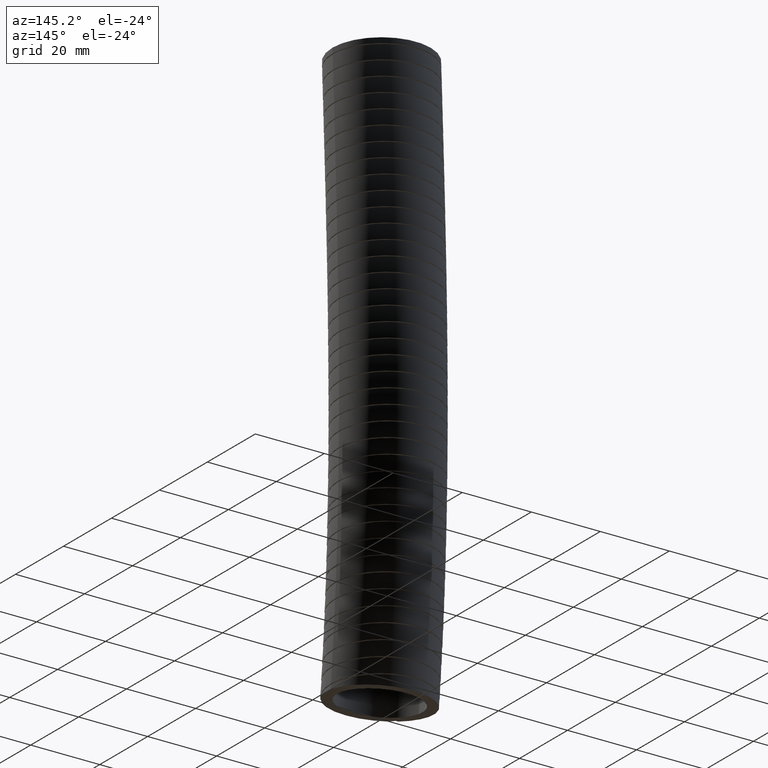
[diagram: clean part render]
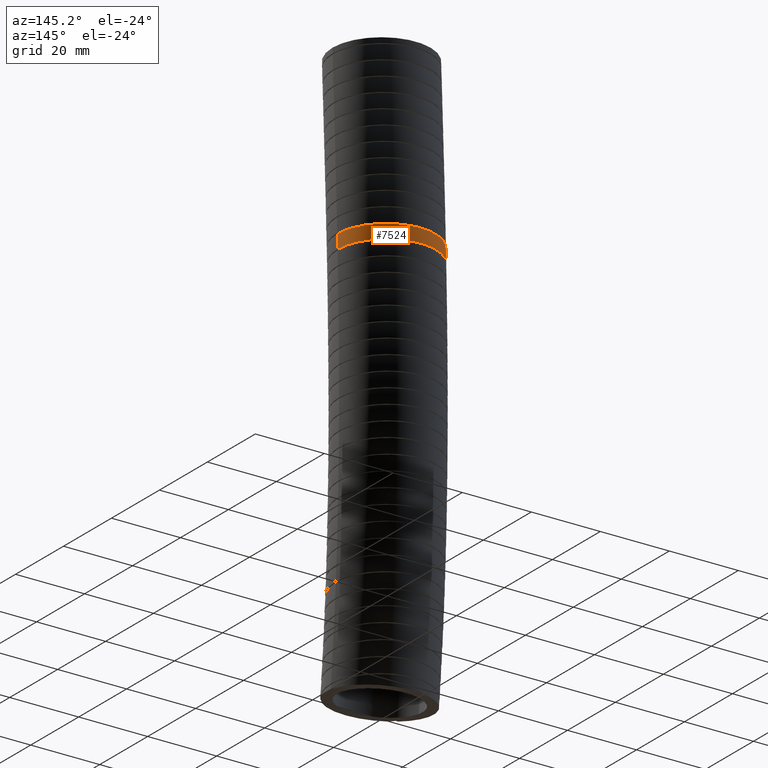
[diagram: same view with one face highlighted and labeled with its STEP entity id]
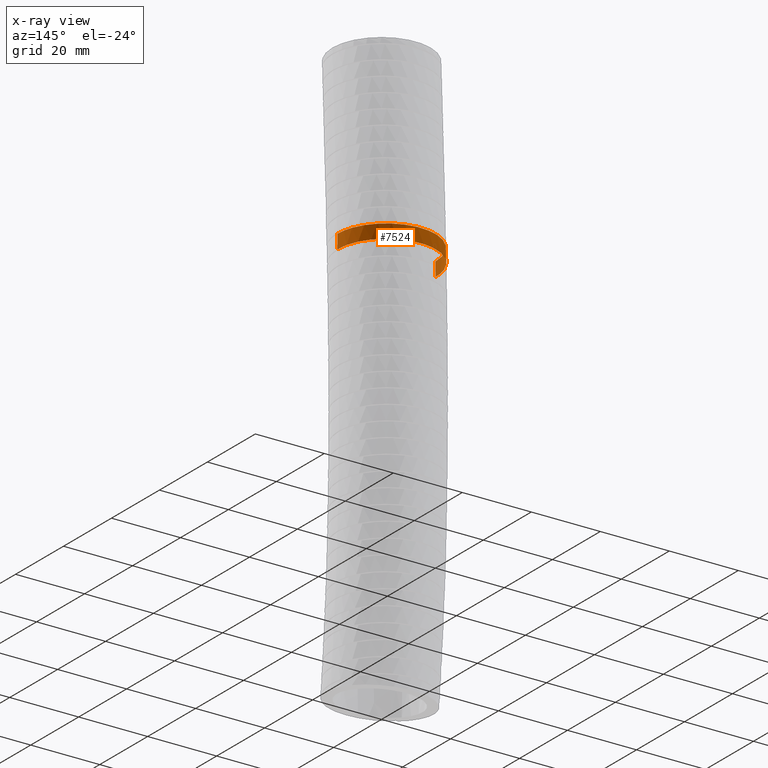
[diagram: x-ray of the same camera — body ghosted, the highlighted face saturated]
A machine part, auxiliary view. The second image highlights one B-rep face of the part: STEP entity #7524.
The next image is the same camera in x-ray: the body ghosted, the highlighted face saturated — about 0% of this face is hidden behind the body in this view.
In plain terms, the highlighted face is a freeform B-spline surface patch.
Its self-contained STEP definition (entity closure, byte-faithful):
#1480 = EDGE_CURVE ( 'NONE', #1533, #1511, #5701, .T. ) ;
#1499 = VERTEX_POINT ( 'NONE', #5762 ) ;
#1506 = EDGE_CURVE ( 'NONE', #1509, #1499, #5761, .T. ) ;
#1509 = VERTEX_POINT ( 'NONE', #5755 ) ;
#1511 = VERTEX_POINT ( 'NONE', #5772 ) ;
#1533 = VERTEX_POINT ( 'NONE', #6014 ) ;
#5514 = EDGE_LOOP ( 'NONE', ( #7455, #7088, #7252, #7278 ) ) ;
#5697 = CARTESIAN_POINT ( 'NONE',  ( 0.5600000000000000500, 0.08316556057875497400, -2.098393916621477100 ) ) ;
#5698 = CARTESIAN_POINT ( 'NONE',  ( 0.5600000000000000500, 0.08158978297478158800, -2.045089779108594500 ) ) ;
#5699 = CARTESIAN_POINT ( 'NONE',  ( 0.5600000000000000500, 0.07995251212337227400, -1.991783052369638900 ) ) ;
#5700 = CARTESIAN_POINT ( 'NONE',  ( 0.5600000000000000500, 0.07825843623321680800, -1.938473933805744600 ) ) ;
#5701 = B_SPLINE_CURVE_WITH_KNOTS ( 'NONE', 3,
 ( #5700, #5699, #5698, #5697 ),
 .UNSPECIFIED., .F., .F.,
 ( 4, 4 ),
 ( 0.2944911416102383700, 0.3187959609143171100 ),
 .UNSPECIFIED. ) ;
#5755 = CARTESIAN_POINT ( 'NONE',  ( -0.5600000000000000500, 0.07825843624542037900, -1.938473933997754100 ) ) ;
#5756 = CARTESIAN_POINT ( 'NONE',  ( -0.5600000000000000500, 0.08316556059010749000, -2.098393916813488400 ) ) ;
#5757 = CARTESIAN_POINT ( 'NONE',  ( -0.5600000000000000500, 0.08158978298061067600, -2.045089779300780700 ) ) ;
#5758 = CARTESIAN_POINT ( 'NONE',  ( -0.5600000000000000500, 0.07995251212934359500, -1.991783052561833400 ) ) ;
#5760 = CARTESIAN_POINT ( 'NONE',  ( -0.5600000000000000500, 0.07825843624542037900, -1.938473933997754100 ) ) ;
#5761 = B_SPLINE_CURVE_WITH_KNOTS ( 'NONE', 3,
 ( #5760, #5758, #5757, #5756 ),
 .UNSPECIFIED., .F., .F.,
 ( 4, 4 ),
 ( 0.2944911416394482300, 0.3187959609435260200 ),
 .UNSPECIFIED. ) ;
#5762 = CARTESIAN_POINT ( 'NONE',  ( -0.5600000000000000500, 0.08316556059010749000, -2.098393916813488400 ) ) ;
#5772 = CARTESIAN_POINT ( 'NONE',  ( 0.5600000000000000500, 0.08316556057875497400, -2.098393916621477100 ) ) ;
#6014 = CARTESIAN_POINT ( 'NONE',  ( 0.5600000000000000500, 0.07825843623321680800, -1.938473933805744600 ) ) ;
#7045 = EDGE_CURVE ( 'NONE', #1511, #1499, #9196, .T. ) ;
#7088 = ORIENTED_EDGE ( 'NONE', *, *, #7134, .T. ) ;
#7134 = EDGE_CURVE ( 'NONE', #1509, #1533, #9323, .T. ) ;
#7252 = ORIENTED_EDGE ( 'NONE', *, *, #1480, .T. ) ;
#7278 = ORIENTED_EDGE ( 'NONE', *, *, #7045, .T. ) ;
#7455 = ORIENTED_EDGE ( 'NONE', *, *, #1506, .F. ) ;
#7524 = ADVANCED_FACE ( 'NONE', ( #9682 ), #9747, .T. ) ;
#8953 = CARTESIAN_POINT ( 'NONE',  ( 0.4860428273903295600, 0.3636520271099656400, -2.098393916813487100 ) ) ;
#8954 = CARTESIAN_POINT ( 'NONE',  ( 0.5032494191954933700, 0.3314893175565425400, -2.098393916813487500 ) ) ;
#8955 = CARTESIAN_POINT ( 'NONE',  ( 0.4555540889890686800, 0.4093031350996708100, -2.098393916813487100 ) ) ;
#9196 = B_SPLINE_CURVE_WITH_KNOTS ( 'NONE', 3,
 ( #9204, #9203, #9202, #9201, #9200, #9199, #9198, #8954, #8953, #8955, #9275, #9274, #9273, #9272, #9271, #9270, #9269, #9268, #9267, #9266, #9265, #9264, #9263, #9262, #9261, #9260, #9259, #9258, #9257, #9256, #9255, #9254, #9253, #9252, #9251, #9250, #9249, #9248, #9247, #9246, #9245, #9244, #9243, #9242, #9241, #9240, #9239, #9238, #9237 ),
 .UNSPECIFIED., .F., .F.,
 ( 4, 2, 2, 2, 2, 2, 2, 2, 2, 1, 2, 2, 2, 2, 2, 2, 2, 2, 2, 2, 2, 2, 2, 2, 4 ),
 ( 0.0000000000000000000, 0.002779168033226851200, 0.004168752049840277300, 0.005558336066453702400, 0.008337504099680559700, 0.009727088116293990100, 0.01111667213290742200, 0.01389584016613428500, 0.01528542418274771700, 0.01667500819936114700, 0.01806459221597457900, 0.01945417623258801100, 0.02223334426581487900, 0.02362292828242831500, 0.02501251229904175400, 0.02779168033226862200, 0.02918126434888205700, 0.03057084836549549300, 0.03335001639872235700, 0.03612918443194921400, 0.03751876844856264600, 0.03890835246517607100, 0.04168752049840293600, 0.04307710451501636800, 0.04446668853162980000 ),
 .UNSPECIFIED. ) ;
#9198 = CARTESIAN_POINT ( 'NONE',  ( 0.5243381902195863900, 0.2806288736407632200, -2.098393916813487500 ) ) ;
#9199 = CARTESIAN_POINT ( 'NONE',  ( 0.5305973822502106900, 0.2631439259864081200, -2.098393916813487500 ) ) ;
#9200 = CARTESIAN_POINT ( 'NONE',  ( 0.5412613059292654700, 0.2279629140342686900, -2.098393916813487100 ) ) ;
#9201 = CARTESIAN_POINT ( 'NONE',  ( 0.5456959892537199800, 0.2102195925067627800, -2.098393916813487500 ) ) ;
#9202 = CARTESIAN_POINT ( 'NONE',  ( 0.5563682666131599700, 0.1565414105909474500, -2.098393916813487500 ) ) ;
#9203 = CARTESIAN_POINT ( 'NONE',  ( 0.5599999999999999400, 0.1201627459376046800, -2.098393916621476200 ) ) ;
#9204 = CARTESIAN_POINT ( 'NONE',  ( 0.5600000000000000500, 0.08316556057875497400, -2.098393916621477100 ) ) ;
#9237 = CARTESIAN_POINT ( 'NONE',  ( -0.5600000000000000500, 0.08316556059010749000, -2.098393916813488400 ) ) ;
#9238 = CARTESIAN_POINT ( 'NONE',  ( -0.5600000000000001600, 0.1014383123739788100, -2.098393916813487500 ) ) ;
#9239 = CARTESIAN_POINT ( 'NONE',  ( -0.5591076056225144900, 0.1197677464772930200, -2.098393916813486200 ) ) ;
#9240 = CARTESIAN_POINT ( 'NONE',  ( -0.5554773948007129000, 0.1565438305760626100, -2.098393916813487100 ) ) ;
#9241 = CARTESIAN_POINT ( 'NONE',  ( -0.5527581983685109200, 0.1747617239840763800, -2.098393916813487100 ) ) ;
#9242 = CARTESIAN_POINT ( 'NONE',  ( -0.5420218671322213400, 0.2285716714436270600, -2.098393916813487500 ) ) ;
#9243 = CARTESIAN_POINT ( 'NONE',  ( -0.5314353913961841200, 0.2634812989848098800, -2.098393916813487100 ) ) ;
#9244 = CARTESIAN_POINT ( 'NONE',  ( -0.5103489983114634100, 0.3143824450055388600, -2.098393916813487100 ) ) ;
#9245 = CARTESIAN_POINT ( 'NONE',  ( -0.5024017668482870800, 0.3311714017765854400, -2.098393916813488400 ) ) ;
#9246 = CARTESIAN_POINT ( 'NONE',  ( -0.4850647468625801700, 0.3635586112454433600, -2.098393916813487500 ) ) ;
#9247 = CARTESIAN_POINT ( 'NONE',  ( -0.4756525606037124200, 0.3792308927216242500, -2.098393916813487500 ) ) ;
#9248 = CARTESIAN_POINT ( 'NONE',  ( -0.4452312255712878600, 0.4247161907928717600, -2.098393916813488000 ) ) ;
#9249 = CARTESIAN_POINT ( 'NONE',  ( -0.4220104517854071900, 0.4530610638073747100, -2.098393916813487100 ) ) ;
#9250 = CARTESIAN_POINT ( 'NONE',  ( -0.3697183111031833200, 0.5053132231013789400, -2.098393916813487500 ) ) ;
#9251 = CARTESIAN_POINT ( 'NONE',  ( -0.3414324221948030200, 0.5284544289887418400, -2.098393916813488000 ) ) ;
#9252 = CARTESIAN_POINT ( 'NONE',  ( -0.2959151490182663200, 0.5588581141779291900, -2.098393916813487500 ) ) ;
#9253 = CARTESIAN_POINT ( 'NONE',  ( -0.2802241857463134700, 0.5682693561275299300, -2.098393916813487100 ) ) ;
#9254 = CARTESIAN_POINT ( 'NONE',  ( -0.2477797978737728300, 0.5856097924414911400, -2.098393916813487500 ) ) ;
#9255 = CARTESIAN_POINT ( 'NONE',  ( -0.2309956966601164100, 0.5935391279541648600, -2.098393916813487100 ) ) ;
#9256 = CARTESIAN_POINT ( 'NONE',  ( -0.1801467096674426400, 0.6145681410414474100, -2.098393916813487500 ) ) ;
#9257 = CARTESIAN_POINT ( 'NONE',  ( -0.1452393517733231200, 0.6251413534723818700, -2.098393916813488900 ) ) ;
#9258 = CARTESIAN_POINT ( 'NONE',  ( -0.09137498722017831100, 0.6358617957555270400, -2.098393916813488400 ) ) ;
#9259 = CARTESIAN_POINT ( 'NONE',  ( -0.07308552347788528600, 0.6385798163018597800, -2.098393916813487100 ) ) ;
#9260 = CARTESIAN_POINT ( 'NONE',  ( -0.03637224330681720200, 0.6421844240174333600, -2.098393916813487500 ) ) ;
#9261 = CARTESIAN_POINT ( 'NONE',  ( -0.01806410425600935400, 0.6430687751340287100, -2.098393916813488000 ) ) ;
#9262 = CARTESIAN_POINT ( 'NONE',  ( 0.03671911801096199700, 0.6430495095761483700, -2.098393916813488400 ) ) ;
#9263 = CARTESIAN_POINT ( 'NONE',  ( 0.07305435141928814900, 0.6394990315474198300, -2.098393916813488400 ) ) ;
#9264 = CARTESIAN_POINT ( 'NONE',  ( 0.1272691963632583400, 0.6287223971082409600, -2.098393916813488400 ) ) ;
#9265 = CARTESIAN_POINT ( 'NONE',  ( 0.1452370710183409900, 0.6242143493081429000, -2.098393916813487100 ) ) ;
#9266 = CARTESIAN_POINT ( 'NONE',  ( 0.1802940383480488300, 0.6135671158998845500, -2.098393916813487100 ) ) ;
#9267 = CARTESIAN_POINT ( 'NONE',  ( 0.2146659530266806800, 0.6012538445577361200, -2.098393916813487500 ) ) ;
#9268 = CARTESIAN_POINT ( 'NONE',  ( 0.2476862666604869000, 0.5856534994284773300, -2.098393916813487500 ) ) ;
#9269 = CARTESIAN_POINT ( 'NONE',  ( 0.2800204416738372200, 0.5683844753038229700, -2.098393916813487100 ) ) ;
#9270 = CARTESIAN_POINT ( 'NONE',  ( 0.2959291046648930800, 0.5588558209695287900, -2.098393916813487100 ) ) ;
#9271 = CARTESIAN_POINT ( 'NONE',  ( 0.3418501045845032700, 0.5281612741776866600, -2.098393916813487100 ) ) ;
#9272 = CARTESIAN_POINT ( 'NONE',  ( 0.3700492966020657600, 0.5049858455872178200, -2.098393916813487100 ) ) ;
#9273 = CARTESIAN_POINT ( 'NONE',  ( 0.4088105378356551300, 0.4662492054332814700, -2.098393916813486600 ) ) ;
#9274 = CARTESIAN_POINT ( 'NONE',  ( 0.4211371431006893900, 0.4526700054306889700, -2.098393916813487500 ) ) ;
#9275 = CARTESIAN_POINT ( 'NONE',  ( 0.4445644838214206600, 0.4241346652395573400, -2.098393916813487500 ) ) ;
#9276 = CARTESIAN_POINT ( 'NONE',  ( 0.5527560145021418500, 0.1698618083570638500, -1.938473933997755200 ) ) ;
#9277 = CARTESIAN_POINT ( 'NONE',  ( 0.5456233200823262800, 0.2056298903281164300, -1.938473933997755000 ) ) ;
#9278 = CARTESIAN_POINT ( 'NONE',  ( 0.5411880798300705600, 0.2233260287265366700, -1.938473933997752600 ) ) ;
#9279 = CARTESIAN_POINT ( 'NONE',  ( 0.5305630488067572000, 0.2583388749541095700, -1.938473933997752800 ) ) ;
#9280 = CARTESIAN_POINT ( 'NONE',  ( 0.5243501009689669500, 0.2757108673147498100, -1.938473933997754600 ) ) ;
#9281 = CARTESIAN_POINT ( 'NONE',  ( 0.5031302932846116700, 0.3268686697280655500, -1.938473933997754600 ) ) ;
#9282 = CARTESIAN_POINT ( 'NONE',  ( 0.4858625741512532800, 0.3590586061287355200, -1.938473933997754400 ) ) ;
#9283 = CARTESIAN_POINT ( 'NONE',  ( 0.4554403499303402700, 0.4045694851347989000, -1.938473933997755000 ) ) ;
#9284 = CARTESIAN_POINT ( 'NONE',  ( 0.4445406519611263500, 0.4192740559475062200, -1.938473933997753900 ) ) ;
#9285 = CARTESIAN_POINT ( 'NONE',  ( 0.4211834720075209300, 0.4477272870266126900, -1.938473933997753700 ) ) ;
#9286 = CARTESIAN_POINT ( 'NONE',  ( 0.4087206592906894600, 0.4614615278371682100, -1.938473933997753700 ) ) ;
#9287 = CARTESIAN_POINT ( 'NONE',  ( 0.3698150703509449100, 0.5003174039170877900, -1.938473933997753700 ) ) ;
#9288 = CARTESIAN_POINT ( 'NONE',  ( 0.3416162377860825200, 0.5234414948095571500, -1.938473933997754100 ) ) ;
#9289 = CARTESIAN_POINT ( 'NONE',  ( 0.2959333932574042000, 0.5539678027230210400, -1.938473933997754600 ) ) ;
#9290 = CARTESIAN_POINT ( 'NONE',  ( 0.2800520554972473800, 0.5634888621038270900, -1.938473933997754400 ) ) ;
#9291 = CARTESIAN_POINT ( 'NONE',  ( 0.2475428334509012500, 0.5808475591507464800, -1.938473933997755000 ) ) ;
#9292 = CARTESIAN_POINT ( 'NONE',  ( 0.2309776522106397900, 0.5886643557600537100, -1.938473933997754600 ) ) ;
#9293 = CARTESIAN_POINT ( 'NONE',  ( 0.1803764308986235700, 0.6095993919032367500, -1.938473933997753900 ) ) ;
#9294 = CARTESIAN_POINT ( 'NONE',  ( 0.1454433981467662400, 0.6202263985028737500, -1.938473933997754100 ) ) ;
#9295 = CARTESIAN_POINT ( 'NONE',  ( 0.09119033441611369700, 0.6310191109618636900, -1.938473933997754600 ) ) ;
#9296 = CARTESIAN_POINT ( 'NONE',  ( 0.07289335439235530800, 0.6337230974634138200, -1.938473933997752800 ) ) ;
#9297 = CARTESIAN_POINT ( 'NONE',  ( 0.03645397206912416600, 0.6372973554390362100, -1.938473933997752800 ) ) ;
#9298 = CARTESIAN_POINT ( 'NONE',  ( -2.284116940393222300E-007, 0.6390735663334937700, -1.938473933997756600 ) ) ;
#9299 = CARTESIAN_POINT ( 'NONE',  ( -0.03648371322311923900, 0.6372963931548549800, -1.938473933997754400 ) ) ;
#9300 = CARTESIAN_POINT ( 'NONE',  ( -0.07298208822438928500, 0.6337124324435395900, -1.938473933997754600 ) ) ;
#9301 = CARTESIAN_POINT ( 'NONE',  ( -0.09133930126130858400, 0.6309930707712337900, -1.938473933997754400 ) ) ;
#9302 = CARTESIAN_POINT ( 'NONE',  ( -0.1454621766664726300, 0.6202154428053083800, -1.938473933997755000 ) ) ;
#9303 = CARTESIAN_POINT ( 'NONE',  ( -0.1803734749220846600, 0.6096026924664887900, -1.938473933997753300 ) ) ;
#9304 = CARTESIAN_POINT ( 'NONE',  ( -0.2310199288819493600, 0.5886458247506012300, -1.938473933997753900 ) ) ;
#9305 = CARTESIAN_POINT ( 'NONE',  ( -0.2476132931945825300, 0.5808146107477761800, -1.938473933997754600 ) ) ;
#9306 = CARTESIAN_POINT ( 'NONE',  ( -0.2802028561554087400, 0.5634036339644799000, -1.938473933997755000 ) ) ;
#9307 = CARTESIAN_POINT ( 'NONE',  ( -0.2959972375246433500, 0.5539270885972981100, -1.938473933997754100 ) ) ;
#9308 = CARTESIAN_POINT ( 'NONE',  ( -0.3416124264645595300, 0.5234401375649688800, -1.938473933997754400 ) ) ;
#9309 = CARTESIAN_POINT ( 'NONE',  ( -0.3698219060151714500, 0.5003173274029078000, -1.938473933997753300 ) ) ;
#9310 = CARTESIAN_POINT ( 'NONE',  ( -0.4087946070467793900, 0.4613842893027757500, -1.938473933997754100 ) ) ;
#9311 = CARTESIAN_POINT ( 'NONE',  ( -0.4212706007610780800, 0.4476259813899101100, -1.938473933997754100 ) ) ;
#9312 = CARTESIAN_POINT ( 'NONE',  ( -0.4445724481210376300, 0.4192304650012056400, -1.938473933997754600 ) ) ;
#9313 = CARTESIAN_POINT ( 'NONE',  ( -0.4554575190175403900, 0.4045450139342002800, -1.938473933997754400 ) ) ;
#9314 = CARTESIAN_POINT ( 'NONE',  ( -0.4858627666772347100, 0.3590558894063277700, -1.938473933997754600 ) ) ;
#9315 = CARTESIAN_POINT ( 'NONE',  ( -0.5031802668918474700, 0.3267729371856683600, -1.938473933997754400 ) ) ;
#9316 = CARTESIAN_POINT ( 'NONE',  ( -0.5314836380164197300, 0.2584881268133759100, -1.938473933997753900 ) ) ;
#9317 = CARTESIAN_POINT ( 'NONE',  ( -0.5420591607961049400, 0.2235095631495787600, -1.938473933997755000 ) ) ;
#9318 = CARTESIAN_POINT ( 'NONE',  ( -0.5527607343930486300, 0.1698348352168076200, -1.938473933997754600 ) ) ;
#9319 = CARTESIAN_POINT ( 'NONE',  ( -0.5554612924279374000, 0.1517406278962898100, -1.938473933997753900 ) ) ;
#9320 = CARTESIAN_POINT ( 'NONE',  ( -0.5590866969809341600, 0.1151370262716389600, -1.938473933997754600 ) ) ;
#9321 = CARTESIAN_POINT ( 'NONE',  ( -0.5600000000000001600, 0.09659849062835221300, -1.938473933997754400 ) ) ;
#9322 = CARTESIAN_POINT ( 'NONE',  ( -0.5600000000000000500, 0.07825843624542037900, -1.938473933997754100 ) ) ;
#9323 = B_SPLINE_CURVE_WITH_KNOTS ( 'NONE', 3,
 ( #9322, #9321, #9320, #9319, #9318, #9317, #9316, #9315, #9314, #9313, #9312, #9311, #9310, #9309, #9308, #9307, #9306, #9305, #9304, #9303, #9302, #9301, #9300, #9299, #9298, #9297, #9296, #9295, #9294, #9293, #9292, #9291, #9290, #9289, #9288, #9287, #9286, #9285, #9284, #9283, #9282, #9281, #9280, #9279, #9278, #9277, #9276, #9343, #9342, #9341, #9340 ),
 .UNSPECIFIED., .F., .F.,
 ( 4, 2, 2, 2, 2, 2, 2, 2, 2, 2, 2, 2, 1, 2, 2, 2, 2, 2, 2, 2, 2, 2, 2, 2, 2, 4 ),
 ( 0.04494306431700567000, 0.04634762020305512000, 0.04775217608910457800, 0.05056128786120348000, 0.05337039963330238900, 0.05477495551935183900, 0.05617951140540129700, 0.05898862317750021300, 0.06039317906354966400, 0.06179773494959911500, 0.06460684672169803000, 0.06601140260774748800, 0.06741595849379694600, 0.06882051437984639000, 0.07022507026589583400, 0.07303418203799474900, 0.07443873792404420700, 0.07584329381009365100, 0.07865240558219255300, 0.08005696146824201100, 0.08146151735429146800, 0.08427062912639038400, 0.08567518501243984200, 0.08707974089848930000, 0.08848429678453875700, 0.08988885267058821500 ),
 .UNSPECIFIED. ) ;
#9340 = CARTESIAN_POINT ( 'NONE',  ( 0.5600000000000000500, 0.07825843623321680800, -1.938473933805744600 ) ) ;
#9341 = CARTESIAN_POINT ( 'NONE',  ( 0.5599999999999998300, 0.09675481145372467900, -1.938473933805744200 ) ) ;
#9342 = CARTESIAN_POINT ( 'NONE',  ( 0.5590771186330646400, 0.1152629339108080900, -1.938473933997754400 ) ) ;
#9343 = CARTESIAN_POINT ( 'NONE',  ( 0.5554535088204106700, 0.1517898734672286600, -1.938473933997755200 ) ) ;
#9682 = FACE_OUTER_BOUND ( 'NONE', #5514, .T. ) ;
#9734 = CARTESIAN_POINT ( 'NONE',  ( 0.5600000000000000500, 0.05489119717643108800, -1.228947034284315200 ) ) ;
#9735 = CARTESIAN_POINT ( 'NONE',  ( 0.5600000000000000500, 0.0000000000000000000, 0.0000000000000000000 ) ) ;
#9747 =( BOUNDED_SURFACE ( )  B_SPLINE_SURFACE ( 3, 3, ( 
 ( #9735, #9734, #9795, #9794, #9793, #9792 ),
 ( #9791, #9790, #9789, #9788, #9786, #9785 ),
 ( #9784, #9783, #9782, #9781, #9780, #9779 ),
 ( #9778, #9777, #9776, #9774, #9773, #9772 ),
 ( #9771, #9770, #9769, #9768, #9767, #9766 ),
 ( #9765, #9764, #9763, #9762, #9761, #9760 ),
 ( #9759, #9758, #9757, #9756, #9755, #9754 ) ),
 .UNSPECIFIED., .F., .F., .F. ) 
 B_SPLINE_SURFACE_WITH_KNOTS ( ( 4, 3, 4 ),
 ( 4, 1, 1, 4 ),
 ( 0.0000000000000000000, 0.5000000000000000000, 1.000000000000000000 ),
 ( 0.0000000000000000000, 0.5599999999999999400, 0.9129383075960209000, 1.000000000000000000 ),
 .UNSPECIFIED. ) 
 GEOMETRIC_REPRESENTATION_ITEM ( )  RATIONAL_B_SPLINE_SURFACE ( (
 ( 1.000000000000000000, 1.000000000000000000, 1.000000000000000200, 1.000000000000000000, 1.000000000000000000, 1.000000000000000000),
 ( 0.3333333333333333100, 0.3333333333333333100, 0.3333333333333333100, 0.3333333333333333100, 0.3333333333333333100, 0.3333333333333333100),
 ( 0.3333333333333333100, 0.3333333333333333100, 0.3333333333333333100, 0.3333333333333333100, 0.3333333333333333100, 0.3333333333333333100),
 ( 1.000000000000000000, 1.000000000000000000, 1.000000000000000200, 1.000000000000000000, 1.000000000000000000, 1.000000000000000000),
 ( 0.3333333333333333100, 0.3333333333333333100, 0.3333333333333333100, 0.3333333333333333100, 0.3333333333333333100, 0.3333333333333333100),
 ( 0.3333333333333333100, 0.3333333333333333100, 0.3333333333333333100, 0.3333333333333333100, 0.3333333333333333100, 0.3333333333333333100),
 ( 1.000000000000000000, 1.000000000000000000, 1.000000000000000200, 1.000000000000000000, 1.000000000000000000, 1.000000000000000000) ) ) 
 REPRESENTATION_ITEM ( '' )  SURFACE ( )  );
#9754 = CARTESIAN_POINT ( 'NONE',  ( 0.5600000000000000500, -0.03000000000000004700, -6.570000000000001200 ) ) ;
#9755 = CARTESIAN_POINT ( 'NONE',  ( 0.5599999999999999400, -0.01258014398173752300, -6.380031713690432800 ) ) ;
#9756 = CARTESIAN_POINT ( 'NONE',  ( 0.5599999999999999400, 0.07545784880698538900, -5.419953363865131400 ) ) ;
#9757 = CARTESIAN_POINT ( 'NONE',  ( 0.5599999999999999400, 0.1443774054838783700, -3.232434222864085900 ) ) ;
#9758 = CARTESIAN_POINT ( 'NONE',  ( 0.5600000000000000500, 0.05489119717643108800, -1.228947034284315200 ) ) ;
#9759 = CARTESIAN_POINT ( 'NONE',  ( 0.5600000000000000500, 0.0000000000000000000, 0.0000000000000000000 ) ) ;
#9760 = CARTESIAN_POINT ( 'NONE',  ( 0.5600000000000000500, 1.079646258180000800, -6.721938085110754600 ) ) ;
#9761 = CARTESIAN_POINT ( 'NONE',  ( 0.5600000000000000500, 1.097787370148356700, -6.524540619502538200 ) ) ;
#9762 = CARTESIAN_POINT ( 'NONE',  ( 0.5600000000000000500, 1.189470509376095100, -5.526916033196590300 ) ) ;
#9763 = CARTESIAN_POINT ( 'NONE',  ( 0.5600000000000000500, 1.265865288774999700, -3.259871941086932300 ) ) ;
#9764 = CARTESIAN_POINT ( 'NONE',  ( 0.5600000000000001600, 1.175456879146091100, -1.239378647153337200 ) ) ;
#9765 = CARTESIAN_POINT ( 'NONE',  ( 0.5600000000000000500, 1.120000000000000100, 0.0000000000000000000 ) ) ;
#9766 = CARTESIAN_POINT ( 'NONE',  ( -0.5599999999999999400, 1.079646258180000800, -6.721938085110754600 ) ) ;
#9767 = CARTESIAN_POINT ( 'NONE',  ( -0.5599999999999999400, 1.097787370148356700, -6.524540619502538200 ) ) ;
#9768 = CARTESIAN_POINT ( 'NONE',  ( -0.5599999999999999400, 1.189470509376095100, -5.526916033196590300 ) ) ;
#9769 = CARTESIAN_POINT ( 'NONE',  ( -0.5599999999999999400, 1.265865288774999700, -3.259871941086932300 ) ) ;
#9770 = CARTESIAN_POINT ( 'NONE',  ( -0.5599999999999999400, 1.175456879146091100, -1.239378647153337200 ) ) ;
#9771 = CARTESIAN_POINT ( 'NONE',  ( -0.5599999999999999400, 1.120000000000000100, 0.0000000000000000000 ) ) ;
#9772 = CARTESIAN_POINT ( 'NONE',  ( -0.5600000000000000500, -0.02999999999999997800, -6.570000000000001200 ) ) ;
#9773 = CARTESIAN_POINT ( 'NONE',  ( -0.5599999999999999400, -0.01258014398173745500, -6.380031713690432800 ) ) ;
#9774 = CARTESIAN_POINT ( 'NONE',  ( -0.5599999999999999400, 0.07545784880698545900, -5.419953363865131400 ) ) ;
#9776 = CARTESIAN_POINT ( 'NONE',  ( -0.5599999999999999400, 0.1443774054838784200, -3.232434222864085900 ) ) ;
#9777 = CARTESIAN_POINT ( 'NONE',  ( -0.5600000000000000500, 0.05489119717643116400, -1.228947034284315200 ) ) ;
#9778 = CARTESIAN_POINT ( 'NONE',  ( -0.5600000000000000500, 6.858022075225177600E-017, 0.0000000000000000000 ) ) ;
#9779 = CARTESIAN_POINT ( 'NONE',  ( -0.5600000000000001600, -1.139646258180001100, -6.418061914889248600 ) ) ;
#9780 = CARTESIAN_POINT ( 'NONE',  ( -0.5600000000000001600, -1.122947658111831800, -6.235522807878326500 ) ) ;
#9781 = CARTESIAN_POINT ( 'NONE',  ( -0.5600000000000000500, -1.038554811762124200, -5.312990694533671600 ) ) ;
#9782 = CARTESIAN_POINT ( 'NONE',  ( -0.5600000000000000500, -0.9771104778072428100, -3.204996504641237600 ) ) ;
#9783 = CARTESIAN_POINT ( 'NONE',  ( -0.5600000000000001600, -1.065674484793228500, -1.218515421415292500 ) ) ;
#9784 = CARTESIAN_POINT ( 'NONE',  ( -0.5600000000000001600, -1.119999999999999900, 0.0000000000000000000 ) ) ;
#9785 = CARTESIAN_POINT ( 'NONE',  ( 0.5600000000000000500, -1.139646258180001100, -6.418061914889248600 ) ) ;
#9786 = CARTESIAN_POINT ( 'NONE',  ( 0.5600000000000000500, -1.122947658111831800, -6.235522807878326500 ) ) ;
#9788 = CARTESIAN_POINT ( 'NONE',  ( 0.5600000000000000500, -1.038554811762124600, -5.312990694533671600 ) ) ;
#9789 = CARTESIAN_POINT ( 'NONE',  ( 0.5600000000000000500, -0.9771104778072428100, -3.204996504641237600 ) ) ;
#9790 = CARTESIAN_POINT ( 'NONE',  ( 0.5600000000000001600, -1.065674484793228500, -1.218515421415292500 ) ) ;
#9791 = CARTESIAN_POINT ( 'NONE',  ( 0.5600000000000000500, -1.120000000000000100, 0.0000000000000000000 ) ) ;
#9792 = CARTESIAN_POINT ( 'NONE',  ( 0.5600000000000000500, -0.03000000000000004700, -6.570000000000001200 ) ) ;
#9793 = CARTESIAN_POINT ( 'NONE',  ( 0.5599999999999999400, -0.01258014398173752300, -6.380031713690432800 ) ) ;
#9794 = CARTESIAN_POINT ( 'NONE',  ( 0.5599999999999999400, 0.07545784880698538900, -5.419953363865131400 ) ) ;
#9795 = CARTESIAN_POINT ( 'NONE',  ( 0.5599999999999999400, 0.1443774054838783700, -3.232434222864085900 ) ) ;